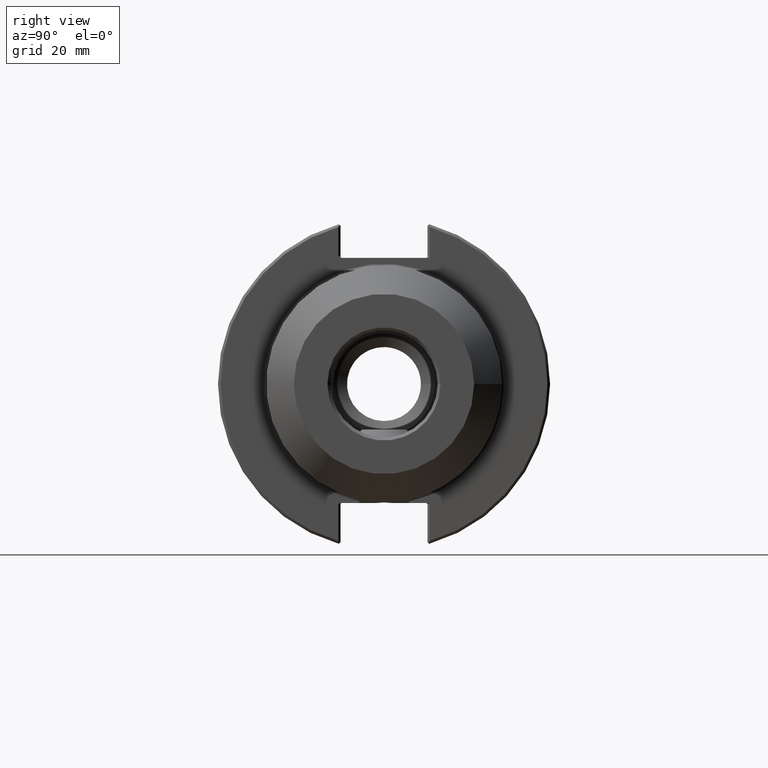
[diagram: clean part render]
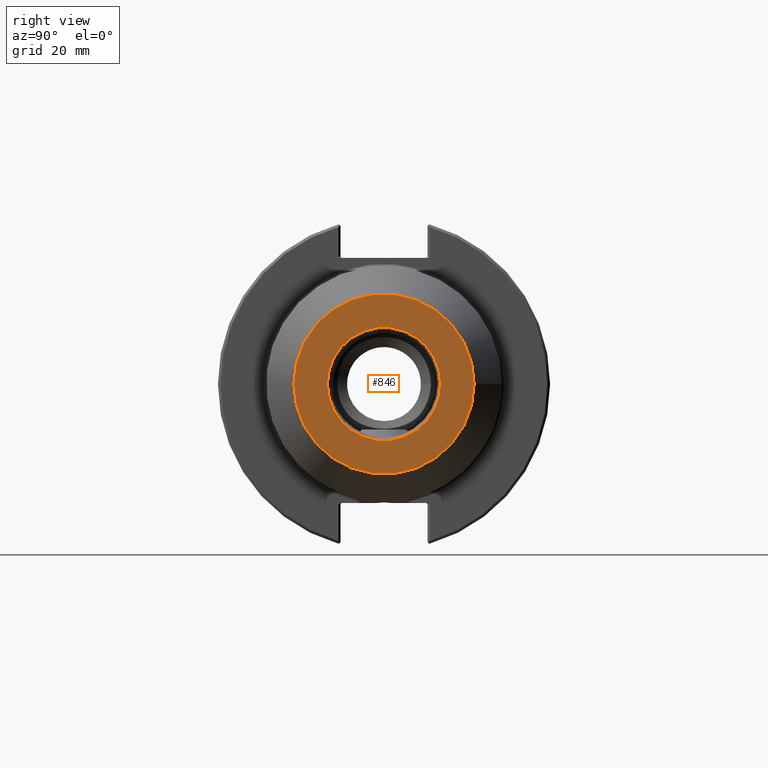
[diagram: same view with one face highlighted and labeled with its STEP entity id]
A machine part, right view. The second image highlights one B-rep face of the part: STEP entity #846.
In plain terms, the highlighted planar face has unit normal (1, 0, 0).
Its self-contained STEP definition (entity closure, byte-faithful):
#677=CARTESIAN_POINT('',(2.625,0.66,0.0));
#678=VERTEX_POINT('',#677);
#679=CARTESIAN_POINT('',(2.625,0.0,0.0));
#680=DIRECTION('',(-1.0,0.0,0.0));
#681=DIRECTION('',(0.0,1.0,0.0));
#682=AXIS2_PLACEMENT_3D('',#679,#680,#681);
#683=CIRCLE('',#682,0.66);
#684=EDGE_CURVE('',#678,#678,#683,.T.);
#820=CARTESIAN_POINT('',(2.625,1.051683849253809,0.0));
#821=VERTEX_POINT('',#820);
#822=CARTESIAN_POINT('',(2.625,0.0,0.0));
#823=DIRECTION('',(1.0,0.0,0.0));
#824=DIRECTION('',(0.0,1.0,0.0));
#825=AXIS2_PLACEMENT_3D('',#822,#823,#824);
#826=CIRCLE('',#825,1.051683849253809);
#827=EDGE_CURVE('',#821,#821,#826,.T.);
#835=CARTESIAN_POINT('',(2.625,0.525841924626905,0.0));
#836=DIRECTION('',(1.0,0.0,0.0));
#837=DIRECTION('',(0.0,0.0,-1.0));
#838=AXIS2_PLACEMENT_3D('',#835,#836,#837);
#839=PLANE('',#838);
#840=ORIENTED_EDGE('',*,*,#827,.T.);
#841=EDGE_LOOP('',(#840));
#842=FACE_OUTER_BOUND('',#841,.T.);
#843=ORIENTED_EDGE('',*,*,#684,.T.);
#844=EDGE_LOOP('',(#843));
#845=FACE_BOUND('',#844,.T.);
#846=ADVANCED_FACE('',(#842,#845),#839,.T.);